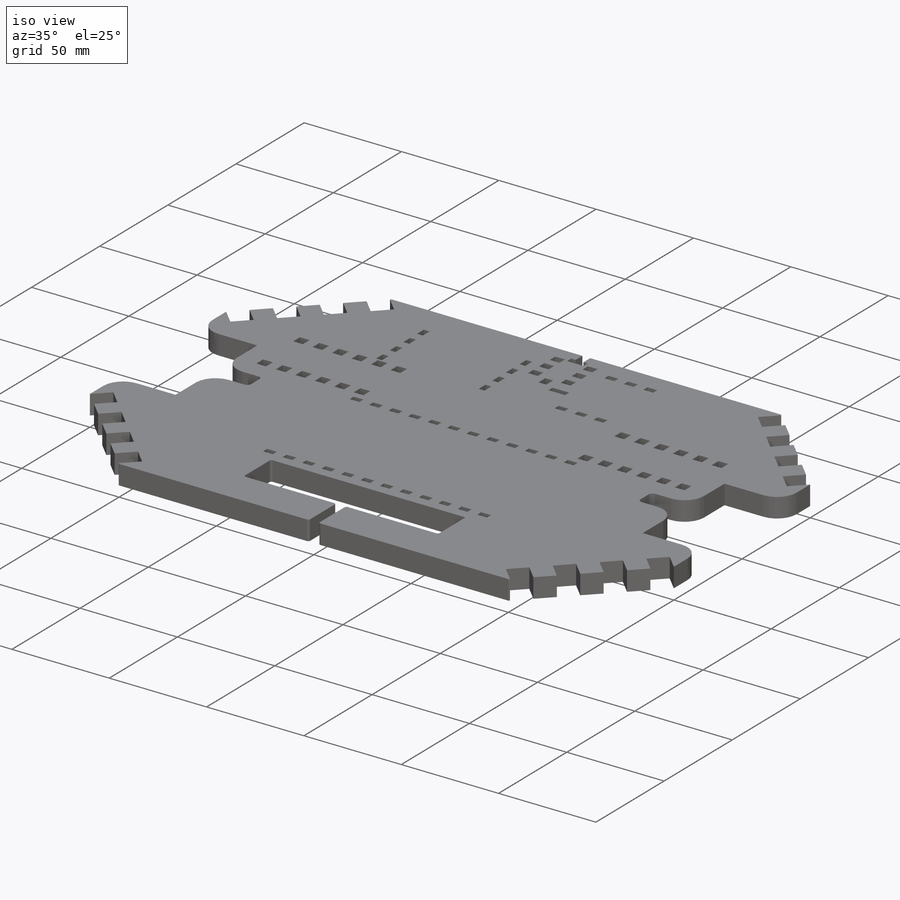
[diagram: iso view]
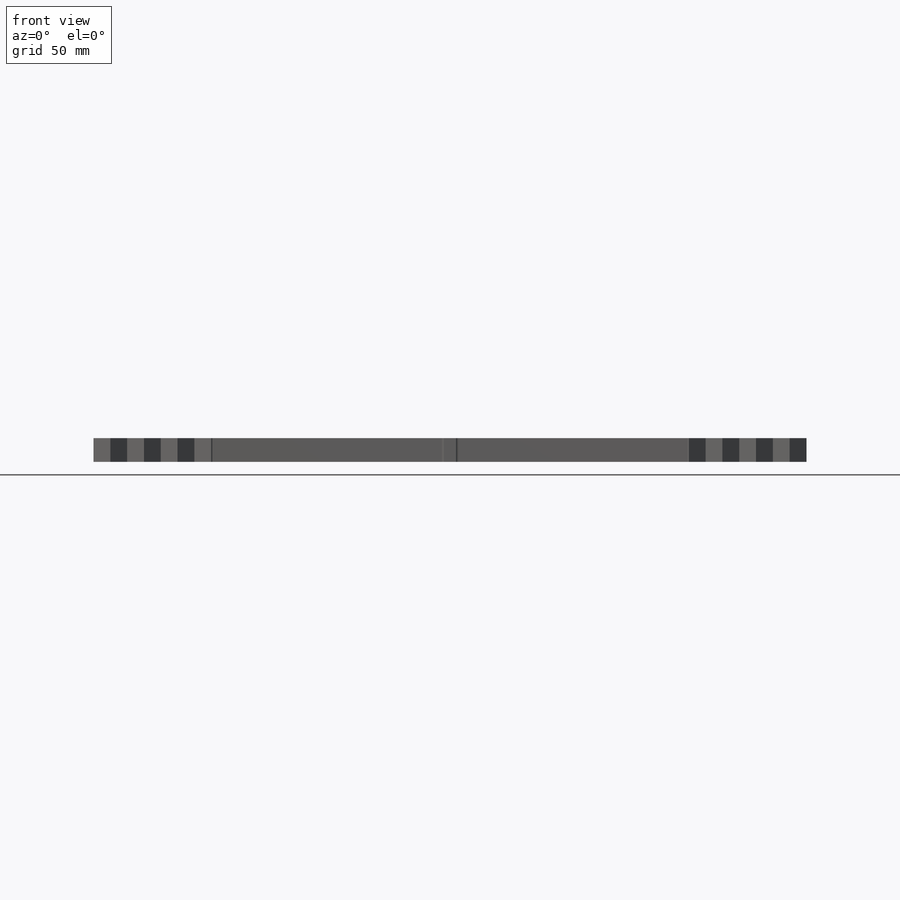
[diagram: front view]
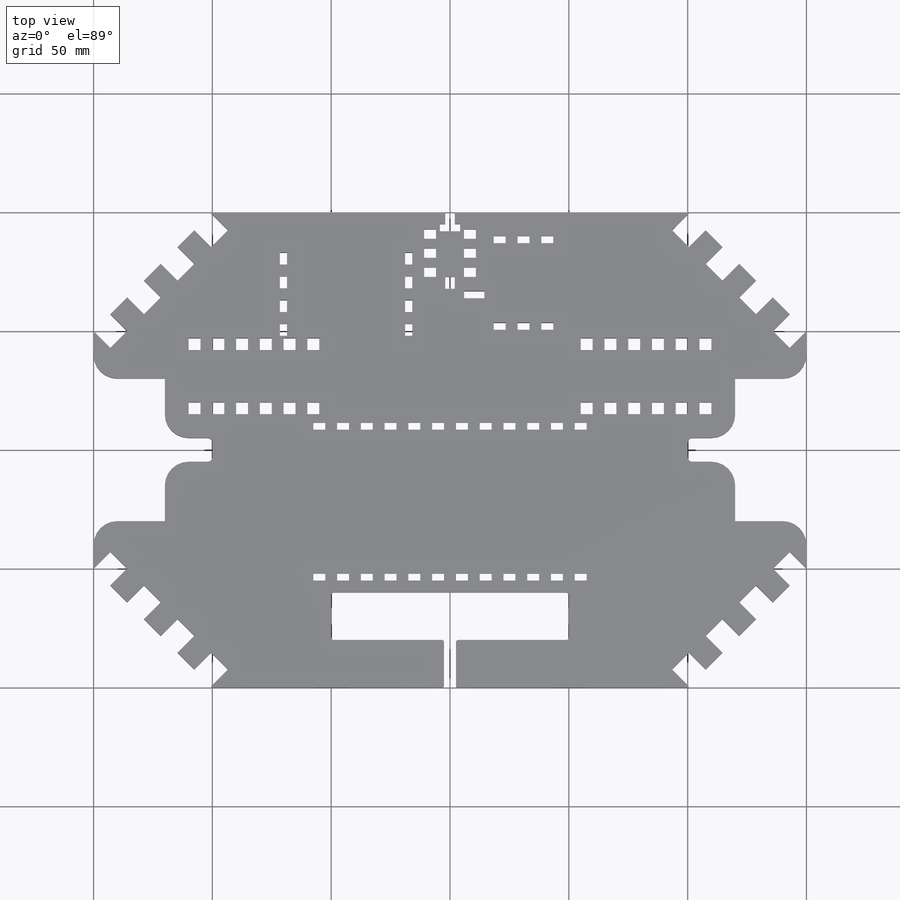
[diagram: top view]
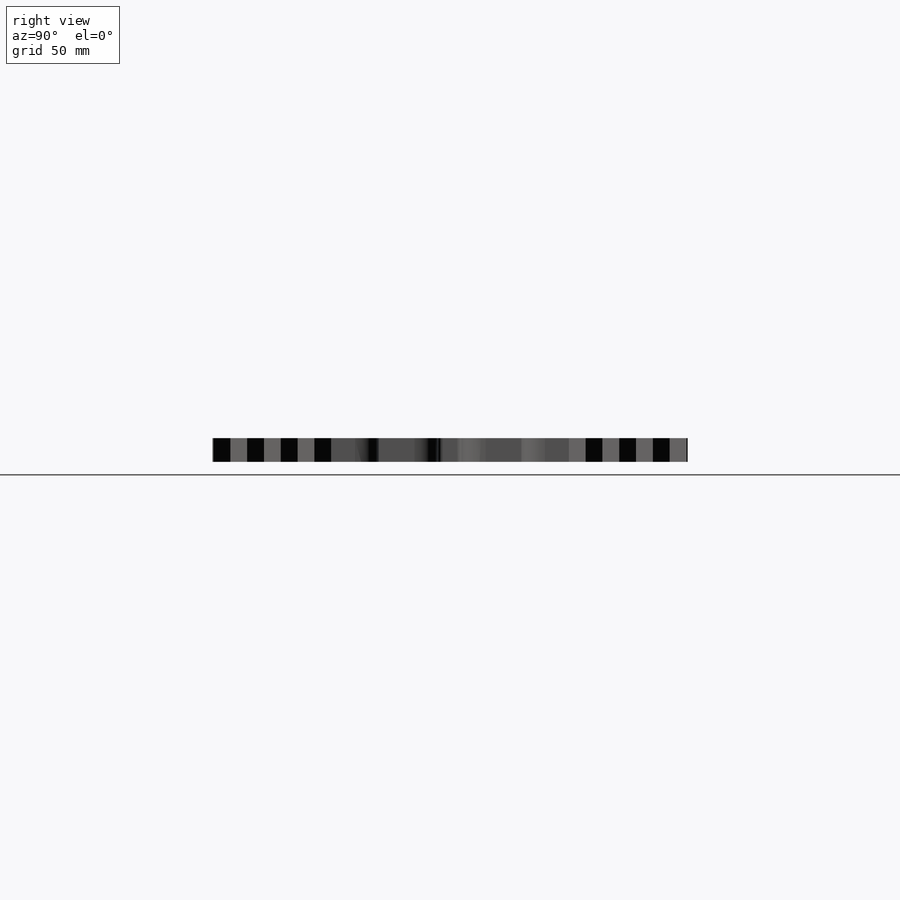
[diagram: right view]
SOLIDWORKS PART (.sldprt)
format: sldprt  version: not decoded by parser v0  size: 1,250,304 bytes
history: native  units: mm
features: sketch x16, cut_extrude x15, fillet x4, plane x3, pattern_linear x2, mirror x2, material x1, extrude x1 (+10 scaffold rows collapsed)
feature tree (54):
  scaffold x10  (default folders/planes/origin — collapsed)
  material  "Balsa"
  plane  "Plan de face"
  plane  "Plan de dessus"
  plane  "Plan de droite"
  sketch  "Esquisse1"  dims[D1=300.0mm D2=200.0mm D3=150.0mm D4=100.0mm]
  extrude  "Boss.-Extru.1"  Depth=10mm
  sketch  "Esquisse2"  dims[D1=50.0mm D2=50.0mm D3=50.0mm D4=50.0mm D5=50.0mm D6=50.0mm D7=50.0mm D8=50.0mm]
  cut_extrude  "Enlèv. mat.-Extru.1"  [1 undecoded]
  sketch  "Esquisse12"  dims[D1=10.0mm D2=10.0mm D3=0.0mm]
  cut_extrude  "Enlèv. mat.-Extru.11"  [1 undecoded]
  pattern_linear  "Répétition linéaire2"  Count1=4 Count2=1 Spacing1=20mm Spacing2=10mm
  mirror  "Symétrie2"
  mirror  "Symétrie3"
  sketch  "Esquisse14"  dims[D1=15.0mm D2=7.5mm D3=30.0mm]
  cut_extrude  "Enlèv. mat.-Extru.13"  [1 undecoded]
  sketch  "Esquisse15"  dims[D1=5.0mm D2=5.0mm D3=5.4mm]
  cut_extrude  "Enlèv. mat.-Extru.14"  [1 undecoded]
  pattern_linear  "Répétition linéaire3"  Count1=3 Count2=1 Spacing1=10mm Spacing2=10mm
  sketch  "Esquisse31"  dims[c1.D1=22.2mm c1.D2=11.8mm c1.D3=94.1mm c1.D4=~94.518057mm c1.D5=4.0mm c1.D6=4.0mm c1.D7=4.0mm c1.D8=4.0mm c1.D9=6.2mm c1.D10=~4.418057mm c2.D3=4.0mm c2.D7=4.0mm c2.D8=4.0mm c2.D9=4.0mm c2.D10=4.0mm c2.D11=0.0mm c2.D4=94.1mm c2.D12=94.1mm c2.D13=4.0mm c2.D14=4.0mm c2.D15=3.8mm c2.D16=2.2mm c2.D17=2.2mm c3.D3=4.0mm c3.D5=5.0mm c3.D6=4.0mm c3.D7=5.0mm c3.D8=4.0mm c3.D9=4.0mm c3.D10=4.0mm c3.D11=5.0mm c3.D4=3.9mm c3.D12=3.9mm c3.D13=4.0mm c3.D14=5.0mm c3.D15=7.2mm c3.D16=5.0mm c3.D17=4.0mm]
  cut_extrude  "Enlèv. mat.-Extru.29"  [1 undecoded]
  sketch  "Esquisse32"  dims[c1.D1=60.0mm c1.D2=30.0mm c1.D3=30.0mm c2.D3=135.0deg c3.D3=20.0mm]
  cut_extrude  "Enlèv. mat.-Extru.30"  [1 undecoded]
  sketch  "Esquisse33"  dims[D1=5.0mm D2=5.0mm D3=40.0mm D4=80.0mm D10=5.0mm D5=4.0 D6=2.0 D7=3.0 D8=3.0 D9=3.0]
  cut_extrude  "Enlèv. mat.-Extru.31"  [1 undecoded]
  sketch  "Esquisse34"  dims[D1=100.0mm D2=20.0mm D3=20.0mm D4=100.0mm D5=100.0mm]
  cut_extrude  "Enlèv. mat.-Extru.33"  [1 undecoded]
  sketch  "Esquisse35"  dims[c1.D1=97.5mm c1.D2=20.0mm c2.D2=90.0deg c3.D2=97.5mm]
  cut_extrude  "Enlèv. mat.-Extru.34"  Depth=10mm
  fillet  "Congé1"  Radius=1mm
  sketch  "Esquisse36"  dims[D1=3.0mm D2=5.0mm D3=10.0mm D5=33.5mm D6=3.0mm D7=5.0mm D9=50.0mm D4=3.0 D8=3.0]
  cut_extrude  "Enlèv. mat.-Extru.35"  Depth=10mm
  sketch  "Esquisse37"  dims[D1=3.0mm D2=8.5mm]
  cut_extrude  "Enlèv. mat.-Extru.36"  Depth=10mm
  sketch  "Esquisse39"  dims[D1=3.0mm D2=8.5mm D3=4.25mm D4=0.0mm]
  cut_extrude  "Enlèv. mat.-Extru.37"  Depth=10mm
  sketch  "Esquisse40"  dims[D1=3.0mm D2=5.0mm D3=5.0mm D4=7.5mm D6=30.25mm D5=12.0]
  cut_extrude  "Enlèv. mat.-Extru.39"  Depth=10mm
  sketch  "Esquisse41"  dims[D1=3.0mm D2=5.0mm D3=5.0mm D4=17.0mm D6=24.85mm D5=4.0]
  cut_extrude  "Enlèv. mat.-Extru.40"  Depth=10mm
  sketch  "Esquisse42"  dims[D1=25.0mm D2=25.0mm D3=20.0mm]
  cut_extrude  "Enlèv. mat.-Extru.41"  Depth=10mm
  fillet  "Congé2"  Radius=10mm
  fillet  "Congé3"  Radius=2mm
  fillet  "Congé4"  Radius=10mm
decode coverage: 30 of 40 modeling features carry decoded parameters
note: ~ marks probable driven/reference dimensions
note: 8 parameter values undecoded
summary: no parameter record found for 8 features
note: suppression state not decoded; provenance and decode notes live in map.json
